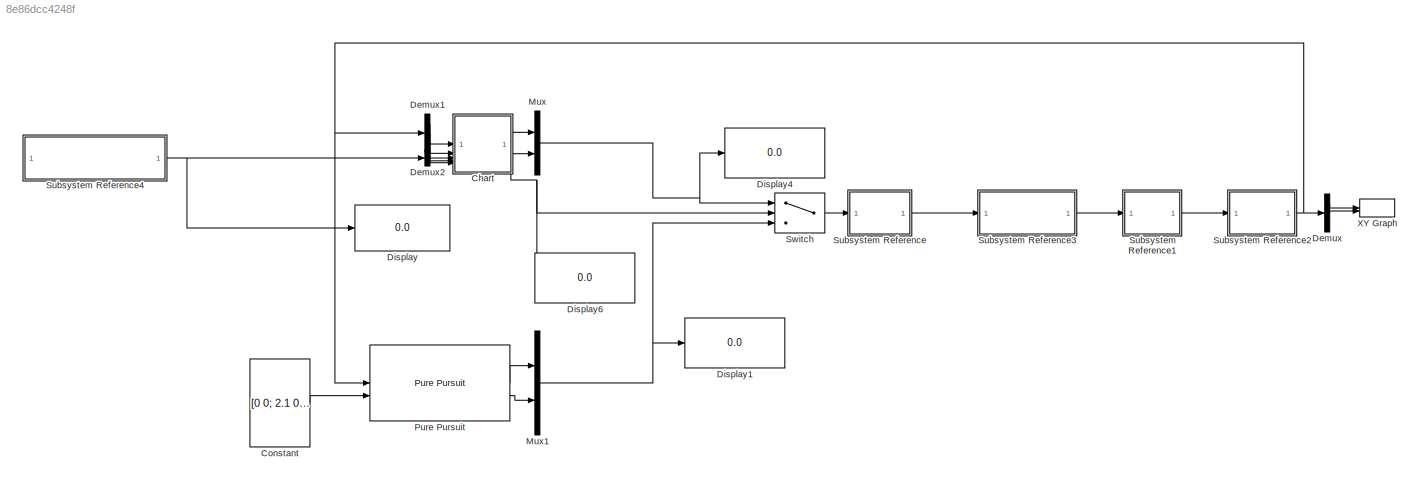
MODEL slx_8e86dcc4248f
KIND model
CONFIG AbsTol = auto
CONFIG EnableMultiTasking = on
CONFIG FixedStep = auto
CONFIG MaxStep = auto
CONFIG MinStep = auto
CONFIG RelTol = 1e-3
CONFIG SampleTimeConstraint = Unconstrained
CONFIG SolverName = FixedStepAuto
CONFIG StartTime = 0.0
CONFIG StopTime = 300
WORKSPACE source: mxarray member
WORKSPACE d = 1
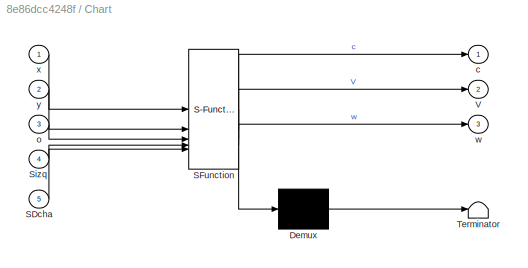
BLOCK [SubSystem] Chart
  ErrorFcn = Stateflow.Translate.translate
  PermitHierarchicalResolution = ExplicitOnly
  PortSchema = {"entries":[{"content":{"sides":[{"content":{"connectorIds":["In1","In2","In3","In4","In5"]},"type":"ConnectorPlacement.EquallySpacedRectSide","uuid":"0c906aa7-8786-49a2-ba1f-534800ed0484"},{"content":{"connectorIds":["Out2","Out3"],"side":"RIGHT"},"type":"ConnectorPlacement.EquallySpacedRectSide","uuid":"f74849c7-163d-4f95-977c-475817888a5e"},{"content":{"side":"TOP"},"type":"ConnectorPlacement.E...<+403ch>
  SFBlockType = Chart
  TreatAsAtomicUnit = on
BLOCK [Demux] Chart/ Demux 
  Outputs = 1
BLOCK [S-Function] Chart/ SFunction 
  EnableBusSupport = on
  FunctionName = sf_sfun
  PortCounts = [5 4]
  SFcnIsStateOwnerBlock = off
  SFunctionDeploymentMode = off
  Tag = Stateflow S-Function 3
BLOCK [Terminator] Chart/ Terminator 
BLOCK [Inport] Chart/SDcha
  Port = 5
BLOCK [Inport] Chart/Sizq
  Port = 4
BLOCK [Outport] Chart/V
  Port = 2
BLOCK [Outport] Chart/c
BLOCK [Inport] Chart/o
  Port = 3
BLOCK [Outport] Chart/w
  Port = 3
BLOCK [Inport] Chart/x
BLOCK [Inport] Chart/y
  Port = 2
BLOCK [Constant] Constant
  Value = [0 0; 2.1 0; 2.1 12; 3 12; 3 14]
BLOCK [Demux] Demux
  Outputs = 3
BLOCK [Demux] Demux1
  Outputs = 3
BLOCK [Demux] Demux2
  Outputs = 2
BLOCK [Display] Display
  Decimation = 1
BLOCK [Display] Display1
  Decimation = 1
BLOCK [Display] Display4
  Decimation = 1
BLOCK [Display] Display6
  Decimation = 1
BLOCK [Mux] Mux
  DisplayOption = bar
  Inputs = 2
BLOCK [Mux] Mux1
  DisplayOption = bar
  Inputs = 2
BLOCK [Reference] Pure Pursuit  REF=robotalgslib/Pure Pursuit
  LibrarySourceBlock = navlib/Control Algorithms/Pure Pursuit
  SourceBlock = robotalgslib/Pure Pursuit
  SourceType = nav.slalgs.internal.PurePursuit
BLOCK [SubSystem] Subsystem Reference
  ReferencedSubsystem = Inverso
BLOCK [SubSystem] Subsystem Reference1
  ReferencedSubsystem = Directo
BLOCK [SubSystem] Subsystem Reference2
  ReferencedSubsystem = Odometria
BLOCK [SubSystem] Subsystem Reference3
  ReferencedSubsystem = PieroControladoV
BLOCK [SubSystem] Subsystem Reference4
  ReferencedSubsystem = Sensor
BLOCK [Switch] Switch
  Criteria = u2 > Threshold
  InputSameDT = off
  SaturateOnIntegerOverflow = off
BLOCK [Record] XY Graph
  CompatibilityTag = XY
  FileSettingsInternal = {"entries":[{"content":{"excelSettings":{"content":{},"type":"Streamout.ExcelSettings"}},"type":"Streamout.FileSettingStorage","uuid":""}],"packageUris":["http:\/\/schema.mathworks.com\/mf0\/streamout_blocks\/R2020a"],"version":"1.0"}
  Layout = [1 1]
  SignalsInternal = {"entries":[{"content":{"signals":[{"content":{"blockPath":[],"dimensions":[1],"domain":"","lineColor":"#0072bd","plots":[ 1 ],"port":1,"sid":[""],"signalID":1,"signalName":"Demux:1"},"type":"RecordBlkView.Signal","uuid":""},{"content":{"blockPath":[],"dimensions":[1],"domain":"","lineColor":"#d95319","plots":[ 1 ],"port":2,"sid":[""],"signalID":2,"signalName":"Demux:2"},"type":"RecordBlkView.Sign...<+160ch>
  VisualizationBindings = {"xyplotplugin":{"info":[{"series":[{"bindingParametersList":[{"parameter":"X-Axis","signalID":1,"signalName":"Demux:1"},{"parameter":"Y-Axis","signalID":2,"signalName":"Demux:2"}],"seriesID":0}],"subplotID":1}]}}
NET Chart:1 -> Display6:1, Switch:2
LINE Chart:2 -> Mux:1
LINE Chart:3 -> Mux:2
LINE Constant:1 -> Pure Pursuit:2
LINE Demux1:1 -> Chart:1
LINE Demux1:2 -> Chart:2
LINE Demux1:3 -> Chart:3
LINE Demux2:1 -> Chart:4
LINE Demux2:2 -> Chart:5
LINE Demux:1 -> XY Graph:1
LINE Demux:2 -> XY Graph:2
NET Mux1:1 -> Display1:1, Switch:3
NET Mux:1 -> Display4:1, Switch:1
LINE Pure Pursuit:1 -> Mux1:1
LINE Pure Pursuit:2 -> Mux1:2
LINE Subsystem Reference1:1 -> Subsystem Reference2:1
NET Subsystem Reference2:1 -> Demux1:1, Demux:1, Pure Pursuit:1
LINE Subsystem Reference3:1 -> Subsystem Reference1:1
NET Subsystem Reference4:1 -> Demux2:1, Display:1
LINE Subsystem Reference:1 -> Subsystem Reference3:1
LINE Switch:1 -> Subsystem Reference:1
note: NET lines group one-source signal fan-out (src -> all destinations, sorted); 1:1 wires keep LINE
CHART Chart states=4 transitions=8
  STATE_LABEL 'SinObstaculos\nw=0;\nV=0;\nc=0;'
  STATE_LABEL 'ObstaculosIzq\nw=-pi/4;\nV=0.1;\nc=1;'
  STATE_LABEL 'ObstaculosDcha\nw=pi/4;\nV=0.1;\nc=1;'
  STATE_LABEL 'ObstaculosFrente\nw=pi/2;\nV=0;\nc=1;'
CHART  states=0 transitions=0
